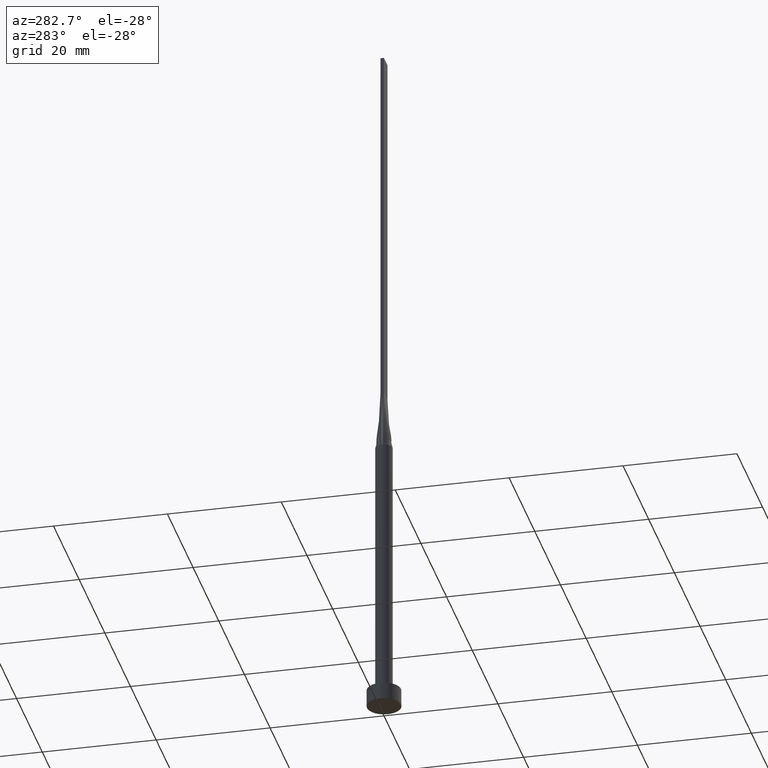
[diagram: clean part render]
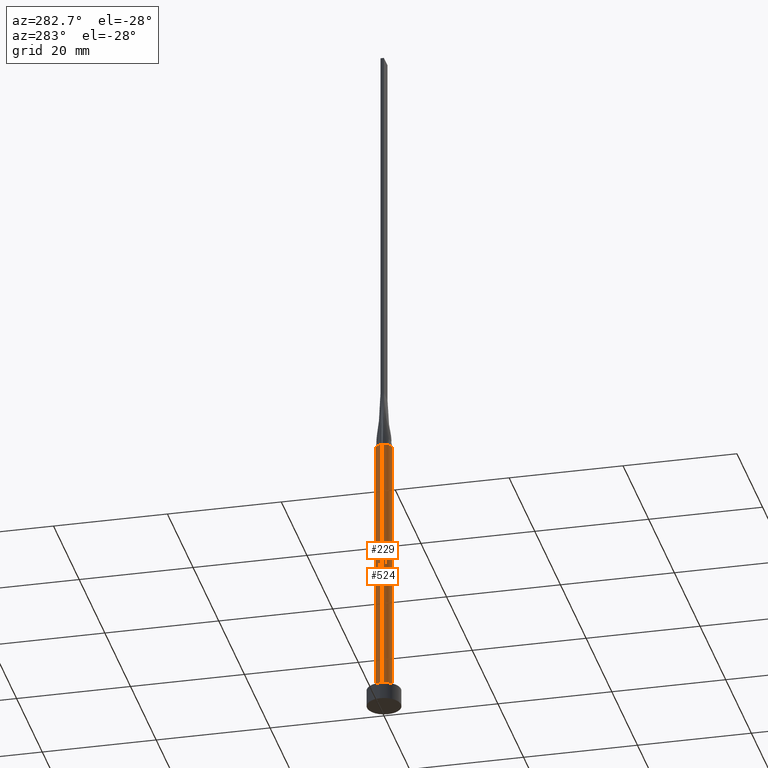
[diagram: same view with one multi-face feature highlighted, each face labeled with its STEP entity id]
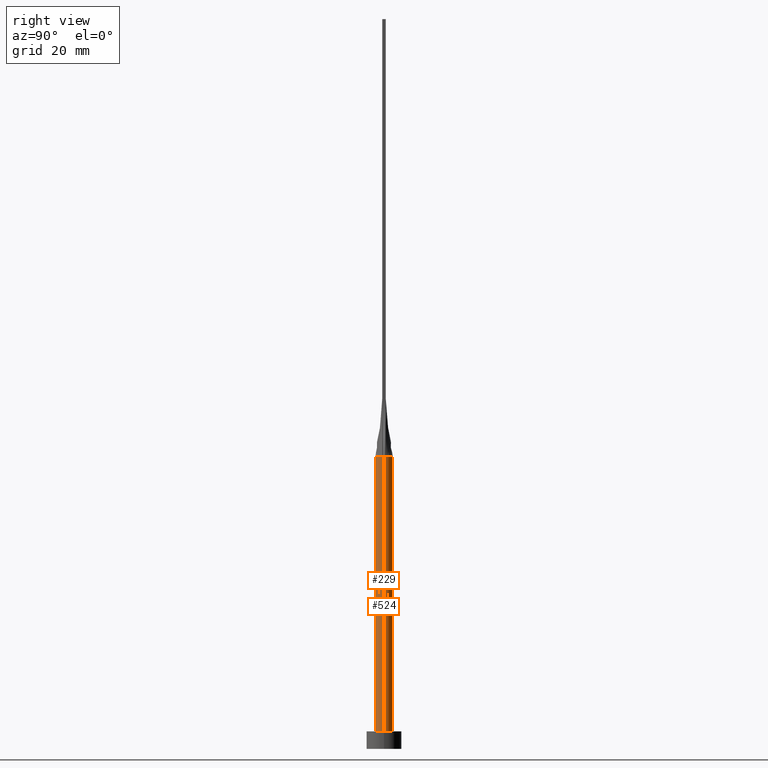
[diagram: same view with one multi-face feature highlighted, each face labeled with its STEP entity id]
A machine part, auxiliary view. The highlighted faces form ONE feature: a constant-radius fillet chain: 2 tangent blend faces with common blend radius 1.5 mm. The faces share edges in the B-rep.
A second angle (right view) of the same feature is appended — it is thin or edge-on in the first view.
Their STEP definitions:
[1] entity #524 (Cylinder):
#41 = CARTESIAN_POINT ( 'NONE',  ( 0.000000000000000000, 0.000000000000000000, 50.00000000000000000 ) ) ;
#53 = CARTESIAN_POINT ( 'NONE',  ( -0.9173979595380679086, 1.199399801402030397, 50.00000000000000000 ) ) ;
#56 = CARTESIAN_POINT ( 'NONE',  ( -0.7614511870148460426, 1.306864626778804661, 49.99999999999999289 ) ) ;
#58 = CARTESIAN_POINT ( 'NONE',  ( -0.4035854070682471928, 1.457676878506885432, 50.00000000000000000 ) ) ;
#61 = CARTESIAN_POINT ( 'NONE',  ( 1.398339371956842880, 0.5625704264602660043, 50.00000000000000000 ) ) ;
#64 = CYLINDRICAL_SURFACE ( 'NONE', #257, 1.500000000000000222 ) ;
#66 = EDGE_CURVE ( 'NONE', #88, #542, #90, .T. ) ;
#88 = VERTEX_POINT ( 'NONE', #534 ) ;
#90 = CIRCLE ( 'NONE', #417, 1.500000000000000222 ) ;
#93 = VERTEX_POINT ( 'NONE', #529 ) ;
#95 = ORIENTED_EDGE ( 'NONE', *, *, #580, .F. ) ;
#96 = CARTESIAN_POINT ( 'NONE',  ( -0.2021039475585064971, 1.499999999999999556, 50.00000000000000711 ) ) ;
#99 = ORIENTED_EDGE ( 'NONE', *, *, #347, .T. ) ;
#100 = CARTESIAN_POINT ( 'NONE',  ( -1.466842056764351865, 0.3143233427268645186, 50.00000000000000000 ) ) ;
#102 = CARTESIAN_POINT ( 'NONE',  ( -1.441093865018553410, 0.4338058282182611913, 49.99999999999999289 ) ) ;
#103 = B_SPLINE_CURVE_WITH_KNOTS ( 'NONE', 3,
 ( #321, #106, #61, #246, #460, #431, #292, #329, #241, #96, #58, #56, #53, #190, #325, #468, #102, #100 ),
 .UNSPECIFIED., .F., .F.,
 ( 4, 2, 2, 2, 2, 2, 2, 2, 4 ),
 ( 0.000000000000000000, 0.1249999999999999445, 0.2499999999999998890, 0.3749999999999998890, 0.4999999999999998890, 0.6249999999999998890, 0.7500000000000000000, 0.8749999999999998890, 1.000000000000000000 ),
 .UNSPECIFIED. ) ;
#106 = CARTESIAN_POINT ( 'NONE',  ( 1.441093865018553410, 0.4338058282182615244, 50.00000000000000000 ) ) ;
#109 = EDGE_CURVE ( 'NONE', #143, #382, #272, .T. ) ;
#111 = DIRECTION ( 'NONE',  ( -0.000000000000000000, -0.000000000000000000, -1.000000000000000000 ) ) ;
#139 = ORIENTED_EDGE ( 'NONE', *, *, #377, .F. ) ;
#143 = VERTEX_POINT ( 'NONE', #411 ) ;
#154 = CARTESIAN_POINT ( 'NONE',  ( 0.000000000000000000, 0.000000000000000000, 3.000000000000000000 ) ) ;
#176 = DIRECTION ( 'NONE',  ( 1.000000000000000000, 0.000000000000000000, 0.000000000000000000 ) ) ;
#178 = DIRECTION ( 'NONE',  ( -0.000000000000000000, -0.000000000000000000, -1.000000000000000000 ) ) ;
#190 = CARTESIAN_POINT ( 'NONE',  ( -1.167251067653078289, 0.9579686032593087708, 50.00000000000001421 ) ) ;
#203 = DIRECTION ( 'NONE',  ( -0.000000000000000000, -0.000000000000000000, -1.000000000000000000 ) ) ;
#209 = VECTOR ( 'NONE', #203, 1000.000000000000000 ) ;
#218 = VERTEX_POINT ( 'NONE', #394 ) ;
#237 = CIRCLE ( 'NONE', #527, 1.500000000000000222 ) ;
#241 = CARTESIAN_POINT ( 'NONE',  ( 0.2021039475585061640, 1.500000000000000222, 50.00000000000000000 ) ) ;
#246 = CARTESIAN_POINT ( 'NONE',  ( 1.261673556793541540, 0.8246322331683844098, 49.99999999999999289 ) ) ;
#253 = LINE ( 'NONE', #570, #209 ) ;
#257 = AXIS2_PLACEMENT_3D ( 'NONE', #444, #111, #442 ) ;
#272 = LINE ( 'NONE', #419, #398 ) ;
#278 = EDGE_LOOP ( 'NONE', ( #502, #511, #99, #373, #95, #139 ) ) ;
#292 = CARTESIAN_POINT ( 'NONE',  ( 0.7614511870148451544, 1.306864626778804883, 50.00000000000000000 ) ) ;
#298 = CARTESIAN_POINT ( 'NONE',  ( 0.000000000000000000, 0.000000000000000000, 50.00000000000000000 ) ) ;
#313 = AXIS2_PLACEMENT_3D ( 'NONE', #154, #471, #371 ) ;
#321 = CARTESIAN_POINT ( 'NONE',  ( 1.466825456746648992, 0.3143198820638501978, 50.00000000000000000 ) ) ;
#325 = CARTESIAN_POINT ( 'NONE',  ( -1.261673556793542872, 0.8246322331683846318, 50.00000000000001421 ) ) ;
#329 = CARTESIAN_POINT ( 'NONE',  ( 0.4035854070682468042, 1.457676878506885654, 49.99999999999998579 ) ) ;
#337 = FACE_OUTER_BOUND ( 'NONE', #278, .T. ) ;
#346 = DIRECTION ( 'NONE',  ( 0.000000000000000000, 0.000000000000000000, 1.000000000000000000 ) ) ;
#347 = EDGE_CURVE ( 'NONE', #218, #382, #473, .T. ) ;
#371 = DIRECTION ( 'NONE',  ( 1.000000000000000000, 0.000000000000000000, 0.000000000000000000 ) ) ;
#373 = ORIENTED_EDGE ( 'NONE', *, *, #109, .F. ) ;
#377 = EDGE_CURVE ( 'NONE', #542, #93, #103, .T. ) ;
#382 = VERTEX_POINT ( 'NONE', #423 ) ;
#394 = CARTESIAN_POINT ( 'NONE',  ( 1.500000000000000222, 1.836970198721030181E-16, 3.000000000000000000 ) ) ;
#398 = VECTOR ( 'NONE', #178, 1000.000000000000000 ) ;
#411 = CARTESIAN_POINT ( 'NONE',  ( -1.499815225192203672, -3.718617114388451945E-16, 50.00000000000000000 ) ) ;
#417 = AXIS2_PLACEMENT_3D ( 'NONE', #41, #531, #176 ) ;
#419 = CARTESIAN_POINT ( 'NONE',  ( -1.500000000000000222, 0.000000000000000000, 50.00000000000000000 ) ) ;
#423 = CARTESIAN_POINT ( 'NONE',  ( -1.500000000000000222, 0.000000000000000000, 3.000000000000000000 ) ) ;
#425 = EDGE_CURVE ( 'NONE', #88, #218, #253, .T. ) ;
#431 = CARTESIAN_POINT ( 'NONE',  ( 0.9173979595380679086, 1.199399801402031285, 50.00000000000001421 ) ) ;
#439 = DIRECTION ( 'NONE',  ( 1.000000000000000000, 0.000000000000000000, 0.000000000000000000 ) ) ;
#442 = DIRECTION ( 'NONE',  ( -1.000000000000000000, 0.000000000000000000, 0.000000000000000000 ) ) ;
#444 = CARTESIAN_POINT ( 'NONE',  ( 0.000000000000000000, 0.000000000000000000, 50.00000000000000000 ) ) ;
#460 = CARTESIAN_POINT ( 'NONE',  ( 1.167251067653077401, 0.9579686032593092149, 50.00000000000000000 ) ) ;
#468 = CARTESIAN_POINT ( 'NONE',  ( -1.398339371956843102, 0.5625704264602656712, 49.99999999999997868 ) ) ;
#471 = DIRECTION ( 'NONE',  ( 0.000000000000000000, 0.000000000000000000, 1.000000000000000000 ) ) ;
#473 = CIRCLE ( 'NONE', #313, 1.500000000000000222 ) ;
#475 = CARTESIAN_POINT ( 'NONE',  ( 1.466825456746648992, 0.3143198820638501978, 50.00000000000000000 ) ) ;
#502 = ORIENTED_EDGE ( 'NONE', *, *, #66, .F. ) ;
#511 = ORIENTED_EDGE ( 'NONE', *, *, #425, .T. ) ;
#524 = ADVANCED_FACE ( 'NONE', ( #337 ), #64, .T. ) ;
#527 = AXIS2_PLACEMENT_3D ( 'NONE', #298, #346, #439 ) ;
#529 = CARTESIAN_POINT ( 'NONE',  ( -1.466842056764351865, 0.3143233427268645186, 50.00000000000000000 ) ) ;
#531 = DIRECTION ( 'NONE',  ( 0.000000000000000000, 0.000000000000000000, 1.000000000000000000 ) ) ;
#534 = CARTESIAN_POINT ( 'NONE',  ( 1.499815225192203672, 3.473831651285826596E-16, 50.00000000000000000 ) ) ;
#542 = VERTEX_POINT ( 'NONE', #475 ) ;
#570 = CARTESIAN_POINT ( 'NONE',  ( 1.500000000000000222, 1.836970198721030181E-16, 50.00000000000000000 ) ) ;
#580 = EDGE_CURVE ( 'NONE', #93, #143, #237, .T. ) ;
[2] entity #229 (Cylinder):
#11 = VERTEX_POINT ( 'NONE', #441 ) ;
#45 = EDGE_CURVE ( 'NONE', #363, #88, #159, .T. ) ;
#55 = ORIENTED_EDGE ( 'NONE', *, *, #109, .T. ) ;
#62 = CARTESIAN_POINT ( 'NONE',  ( 0.000000000000000000, 0.000000000000000000, 50.00000000000000000 ) ) ;
#74 = DIRECTION ( 'NONE',  ( 1.000000000000000000, 0.000000000000000000, 0.000000000000000000 ) ) ;
#76 = CARTESIAN_POINT ( 'NONE',  ( 0.000000000000000000, 0.000000000000000000, 50.00000000000000000 ) ) ;
#88 = VERTEX_POINT ( 'NONE', #534 ) ;
#109 = EDGE_CURVE ( 'NONE', #143, #382, #272, .T. ) ;
#118 = CYLINDRICAL_SURFACE ( 'NONE', #454, 1.500000000000000222 ) ;
#131 = AXIS2_PLACEMENT_3D ( 'NONE', #333, #564, #261 ) ;
#143 = VERTEX_POINT ( 'NONE', #411 ) ;
#151 = CIRCLE ( 'NONE', #343, 1.500000000000000222 ) ;
#159 = CIRCLE ( 'NONE', #356, 1.500000000000000222 ) ;
#178 = DIRECTION ( 'NONE',  ( -0.000000000000000000, -0.000000000000000000, -1.000000000000000000 ) ) ;
#202 = ORIENTED_EDGE ( 'NONE', *, *, #425, .F. ) ;
#203 = DIRECTION ( 'NONE',  ( -0.000000000000000000, -0.000000000000000000, -1.000000000000000000 ) ) ;
#204 = FACE_OUTER_BOUND ( 'NONE', #235, .T. ) ;
#209 = VECTOR ( 'NONE', #203, 1000.000000000000000 ) ;
#218 = VERTEX_POINT ( 'NONE', #394 ) ;
#229 = ADVANCED_FACE ( 'NONE', ( #204 ), #118, .T. ) ;
#235 = EDGE_LOOP ( 'NONE', ( #202, #287, #535, #463, #55, #430 ) ) ;
#250 = DIRECTION ( 'NONE',  ( 0.000000000000000000, 0.000000000000000000, 1.000000000000000000 ) ) ;
#253 = LINE ( 'NONE', #570, #209 ) ;
#261 = DIRECTION ( 'NONE',  ( 1.000000000000000000, 0.000000000000000000, 0.000000000000000000 ) ) ;
#272 = LINE ( 'NONE', #419, #398 ) ;
#287 = ORIENTED_EDGE ( 'NONE', *, *, #45, .F. ) ;
#302 = CARTESIAN_POINT ( 'NONE',  ( 0.000000000000000000, 0.000000000000000000, 50.00000000000000000 ) ) ;
#333 = CARTESIAN_POINT ( 'NONE',  ( 0.000000000000000000, 0.000000000000000000, 50.00000000000000000 ) ) ;
#339 = DIRECTION ( 'NONE',  ( 0.000000000000000000, 0.000000000000000000, 1.000000000000000000 ) ) ;
#343 = AXIS2_PLACEMENT_3D ( 'NONE', #302, #339, #576 ) ;
#345 = DIRECTION ( 'NONE',  ( 1.000000000000000000, 3.552713678800500929E-15, 0.000000000000000000 ) ) ;
#356 = AXIS2_PLACEMENT_3D ( 'NONE', #76, #575, #345 ) ;
#363 = VERTEX_POINT ( 'NONE', #556 ) ;
#382 = VERTEX_POINT ( 'NONE', #423 ) ;
#394 = CARTESIAN_POINT ( 'NONE',  ( 1.500000000000000222, 1.836970198721030181E-16, 3.000000000000000000 ) ) ;
#398 = VECTOR ( 'NONE', #178, 1000.000000000000000 ) ;
#411 = CARTESIAN_POINT ( 'NONE',  ( -1.499815225192203672, -3.718617114388451945E-16, 50.00000000000000000 ) ) ;
#419 = CARTESIAN_POINT ( 'NONE',  ( -1.500000000000000222, 0.000000000000000000, 50.00000000000000000 ) ) ;
#423 = CARTESIAN_POINT ( 'NONE',  ( -1.500000000000000222, 0.000000000000000000, 3.000000000000000000 ) ) ;
#425 = EDGE_CURVE ( 'NONE', #88, #218, #253, .T. ) ;
#430 = ORIENTED_EDGE ( 'NONE', *, *, #523, .T. ) ;
#438 = AXIS2_PLACEMENT_3D ( 'NONE', #515, #250, #74 ) ;
#441 = CARTESIAN_POINT ( 'NONE',  ( -1.466837926445876628, -0.3143226152917824034, 50.00000000000000000 ) ) ;
#445 = CIRCLE ( 'NONE', #131, 1.500000000000000222 ) ;
#454 = AXIS2_PLACEMENT_3D ( 'NONE', #62, #565, #516 ) ;
#457 = EDGE_CURVE ( 'NONE', #11, #363, #445, .T. ) ;
#463 = ORIENTED_EDGE ( 'NONE', *, *, #530, .F. ) ;
#483 = CIRCLE ( 'NONE', #438, 1.500000000000000222 ) ;
#515 = CARTESIAN_POINT ( 'NONE',  ( 0.000000000000000000, 0.000000000000000000, 3.000000000000000000 ) ) ;
#516 = DIRECTION ( 'NONE',  ( -1.000000000000000000, 0.000000000000000000, 0.000000000000000000 ) ) ;
#523 = EDGE_CURVE ( 'NONE', #382, #218, #483, .T. ) ;
#530 = EDGE_CURVE ( 'NONE', #143, #11, #151, .T. ) ;
#534 = CARTESIAN_POINT ( 'NONE',  ( 1.499815225192203672, 3.473831651285826596E-16, 50.00000000000000000 ) ) ;
#535 = ORIENTED_EDGE ( 'NONE', *, *, #457, .F. ) ;
#556 = CARTESIAN_POINT ( 'NONE',  ( 1.466854622690809462, -0.3143260906982852099, 50.00000000000000000 ) ) ;
#564 = DIRECTION ( 'NONE',  ( 0.000000000000000000, 0.000000000000000000, 1.000000000000000000 ) ) ;
#565 = DIRECTION ( 'NONE',  ( -0.000000000000000000, -0.000000000000000000, -1.000000000000000000 ) ) ;
#570 = CARTESIAN_POINT ( 'NONE',  ( 1.500000000000000222, 1.836970198721030181E-16, 50.00000000000000000 ) ) ;
#575 = DIRECTION ( 'NONE',  ( 0.000000000000000000, 0.000000000000000000, 1.000000000000000000 ) ) ;
#576 = DIRECTION ( 'NONE',  ( 1.000000000000000000, 0.000000000000000000, 0.000000000000000000 ) ) ;